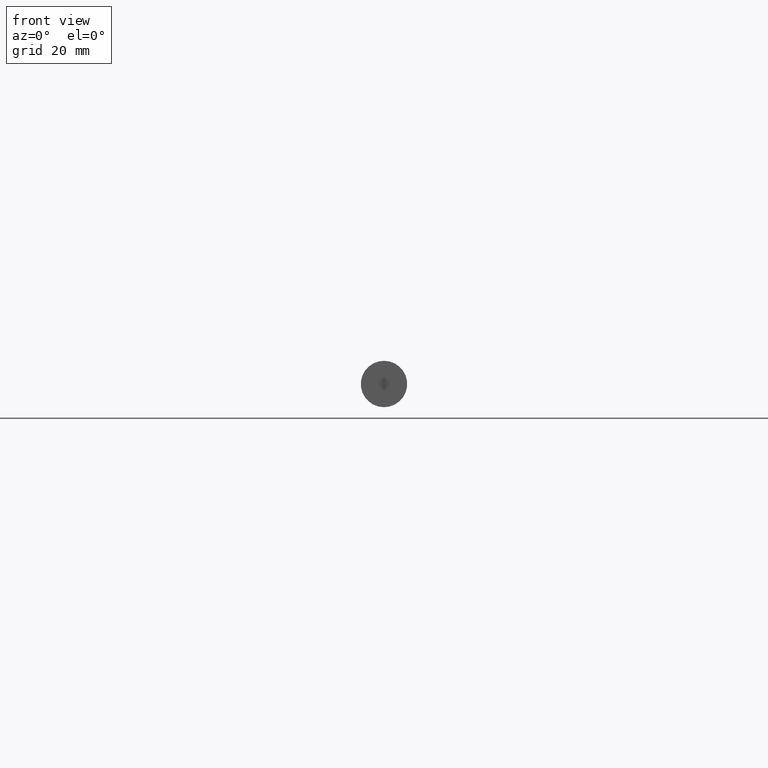
[diagram: clean part render]
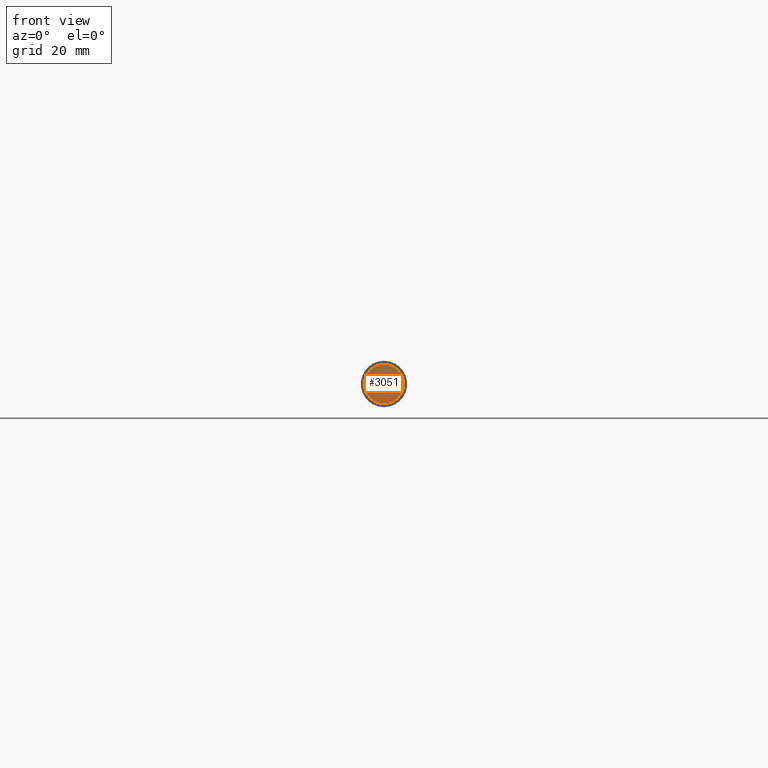
[diagram: same view with one face highlighted and labeled with its STEP entity id]
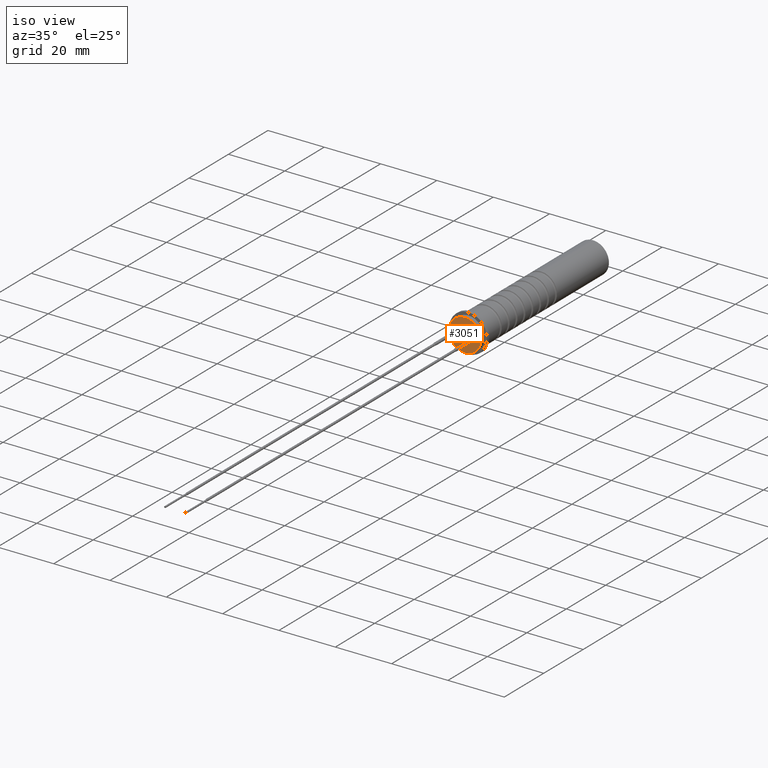
[diagram: same view with one face highlighted and labeled with its STEP entity id]
A machine part, front view. The second image highlights one B-rep face of the part: STEP entity #3051.
A second angle (iso view) of the same face is appended — the face is thin or edge-on in the first view.
In plain terms, the highlighted planar face has unit normal (0, 1, 0).
Its self-contained STEP definition (entity closure, byte-faithful):
#7 = ORIENTED_EDGE ( 'NONE', *, *, #2397, .F. ) ;
#273 = PLANE ( 'NONE',  #3545 ) ;
#480 = CARTESIAN_POINT ( 'NONE',  ( -3.600000000000000100, 0.0000000000000000000, -0.5000000000000012200 ) ) ;
#491 = VERTEX_POINT ( 'NONE', #3301 ) ;
#495 = AXIS2_PLACEMENT_3D ( 'NONE', #3326, #1413, #2165 ) ;
#595 = CARTESIAN_POINT ( 'NONE',  ( 0.0000000000000000000, 0.0000000000000000000, -5.700000000000000200 ) ) ;
#659 = EDGE_CURVE ( 'NONE', #491, #1873, #1449, .T. ) ;
#696 = DIRECTION ( 'NONE',  ( -0.0000000000000000000, -1.000000000000000000, -0.0000000000000000000 ) ) ;
#697 = FACE_OUTER_BOUND ( 'NONE', #987, .T. ) ;
#751 = DIRECTION ( 'NONE',  ( 0.0000000000000000000, 0.0000000000000000000, 1.000000000000000000 ) ) ;
#793 = AXIS2_PLACEMENT_3D ( 'NONE', #3967, #1704, #3998 ) ;
#867 = EDGE_CURVE ( 'NONE', #3517, #3865, #4393, .T. ) ;
#987 = EDGE_LOOP ( 'NONE', ( #2637, #7 ) ) ;
#1198 = EDGE_LOOP ( 'NONE', ( #2714, #2056 ) ) ;
#1218 = DIRECTION ( 'NONE',  ( 0.0000000000000000000, 0.0000000000000000000, 1.000000000000000000 ) ) ;
#1243 = CIRCLE ( 'NONE', #495, 0.5000000000000007800 ) ;
#1413 = DIRECTION ( 'NONE',  ( -0.0000000000000000000, -1.000000000000000000, -0.0000000000000000000 ) ) ;
#1432 = AXIS2_PLACEMENT_3D ( 'NONE', #1951, #4601, #3114 ) ;
#1449 = CIRCLE ( 'NONE', #3625, 0.5000000000000007800 ) ;
#1489 = CARTESIAN_POINT ( 'NONE',  ( 3.600000000000000100, 0.0000000000000000000, -3.857637417314164200E-016 ) ) ;
#1683 = DIRECTION ( 'NONE',  ( 0.0000000000000000000, 0.0000000000000000000, 1.000000000000000000 ) ) ;
#1690 = ORIENTED_EDGE ( 'NONE', *, *, #2265, .F. ) ;
#1704 = DIRECTION ( 'NONE',  ( 0.0000000000000000000, 1.000000000000000000, 0.0000000000000000000 ) ) ;
#1829 = CARTESIAN_POINT ( 'NONE',  ( -3.600000000000000100, 0.0000000000000000000, 0.4999999999999986100 ) ) ;
#1873 = VERTEX_POINT ( 'NONE', #2021 ) ;
#1951 = CARTESIAN_POINT ( 'NONE',  ( -3.600000000000000100, 0.0000000000000000000, -1.267509437117510600E-015 ) ) ;
#2014 = CARTESIAN_POINT ( 'NONE',  ( 6.980486755139913100E-016, 0.0000000000000000000, 5.700000000000000200 ) ) ;
#2021 = CARTESIAN_POINT ( 'NONE',  ( 3.600000000000000100, 0.0000000000000000000, 0.5000000000000003300 ) ) ;
#2056 = ORIENTED_EDGE ( 'NONE', *, *, #659, .F. ) ;
#2060 = EDGE_CURVE ( 'NONE', #1873, #491, #1243, .T. ) ;
#2151 = FACE_BOUND ( 'NONE', #2461, .T. ) ;
#2165 = DIRECTION ( 'NONE',  ( 0.0000000000000000000, 0.0000000000000000000, 1.000000000000000000 ) ) ;
#2251 = FACE_BOUND ( 'NONE', #1198, .T. ) ;
#2265 = EDGE_CURVE ( 'NONE', #2313, #4489, #3817, .T. ) ;
#2313 = VERTEX_POINT ( 'NONE', #480 ) ;
#2397 = EDGE_CURVE ( 'NONE', #3865, #3517, #4010, .T. ) ;
#2461 = EDGE_LOOP ( 'NONE', ( #3137, #1690 ) ) ;
#2637 = ORIENTED_EDGE ( 'NONE', *, *, #867, .F. ) ;
#2714 = ORIENTED_EDGE ( 'NONE', *, *, #2060, .F. ) ;
#2870 = DIRECTION ( 'NONE',  ( 0.0000000000000000000, 1.000000000000000000, 0.0000000000000000000 ) ) ;
#2967 = AXIS2_PLACEMENT_3D ( 'NONE', #3924, #4323, #1683 ) ;
#3051 = ADVANCED_FACE ( 'NONE', ( #2151, #697, #2251 ), #273, .F. ) ;
#3114 = DIRECTION ( 'NONE',  ( 0.0000000000000000000, 0.0000000000000000000, 1.000000000000000000 ) ) ;
#3137 = ORIENTED_EDGE ( 'NONE', *, *, #3245, .F. ) ;
#3206 = AXIS2_PLACEMENT_3D ( 'NONE', #3434, #4209, #1218 ) ;
#3216 = CARTESIAN_POINT ( 'NONE',  ( 0.0000000000000000000, 0.0000000000000000000, 0.0000000000000000000 ) ) ;
#3245 = EDGE_CURVE ( 'NONE', #4489, #2313, #3507, .T. ) ;
#3271 = DIRECTION ( 'NONE',  ( 0.0000000000000000000, -0.0000000000000000000, 1.000000000000000000 ) ) ;
#3301 = CARTESIAN_POINT ( 'NONE',  ( 3.600000000000000100, 0.0000000000000000000, -0.5000000000000012200 ) ) ;
#3326 = CARTESIAN_POINT ( 'NONE',  ( 3.600000000000000100, 0.0000000000000000000, -3.857637417314164200E-016 ) ) ;
#3434 = CARTESIAN_POINT ( 'NONE',  ( -3.600000000000000100, 0.0000000000000000000, -1.267509437117510600E-015 ) ) ;
#3507 = CIRCLE ( 'NONE', #3206, 0.4999999999999998900 ) ;
#3517 = VERTEX_POINT ( 'NONE', #595 ) ;
#3545 = AXIS2_PLACEMENT_3D ( 'NONE', #3216, #2870, #3271 ) ;
#3625 = AXIS2_PLACEMENT_3D ( 'NONE', #1489, #696, #751 ) ;
#3817 = CIRCLE ( 'NONE', #1432, 0.4999999999999998900 ) ;
#3865 = VERTEX_POINT ( 'NONE', #2014 ) ;
#3924 = CARTESIAN_POINT ( 'NONE',  ( 0.0000000000000000000, 0.0000000000000000000, 0.0000000000000000000 ) ) ;
#3967 = CARTESIAN_POINT ( 'NONE',  ( 0.0000000000000000000, 0.0000000000000000000, 0.0000000000000000000 ) ) ;
#3998 = DIRECTION ( 'NONE',  ( 0.0000000000000000000, 0.0000000000000000000, 1.000000000000000000 ) ) ;
#4010 = CIRCLE ( 'NONE', #2967, 5.700000000000000200 ) ;
#4209 = DIRECTION ( 'NONE',  ( -0.0000000000000000000, -1.000000000000000000, -0.0000000000000000000 ) ) ;
#4323 = DIRECTION ( 'NONE',  ( 0.0000000000000000000, 1.000000000000000000, 0.0000000000000000000 ) ) ;
#4393 = CIRCLE ( 'NONE', #793, 5.700000000000000200 ) ;
#4489 = VERTEX_POINT ( 'NONE', #1829 ) ;
#4601 = DIRECTION ( 'NONE',  ( -0.0000000000000000000, -1.000000000000000000, -0.0000000000000000000 ) ) ;